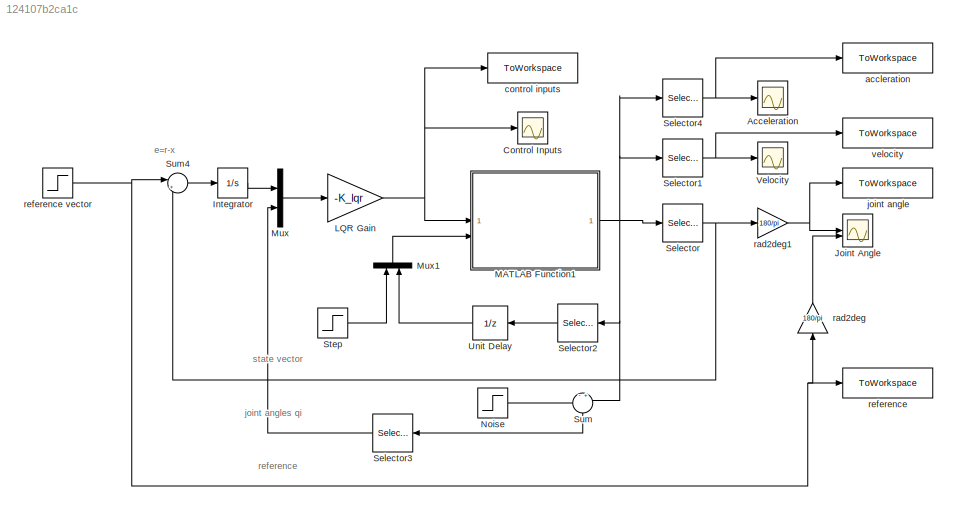
MODEL slx_124107b2ca1c
KIND model
CONFIG AbsTol = auto
CONFIG EnableMultiTasking = off
CONFIG FixedStep = auto
CONFIG MaxStep = auto
CONFIG MinStep = auto
CONFIG RelTol = 1e-3
CONFIG SampleTimeConstraint = Unconstrained
CONFIG SolverName = VariableStepAuto
CONFIG StartTime = 0.0
CONFIG StopTime = 3
BLOCK [Scope] Acceleration
  Floating = off
  NumInputPorts = 1
  ScopeSpecificationString = Simulink.scopes.TimeScopeBlockCfg('CurrentConfiguration', extmgr.ConfigurationSet(extmgr.Configuration('Core','General UI',true),extmgr.Configuration('Core','Source UI',true),extmgr.Configuration('Sources','WiredSimulink',true,'DataLoggingVariableName','ScopeData1'),extmgr.Configuration('Visuals','Time Domain',true,'SerializedDisplays',{struct('MinYLimReal','-25.68605','MaxYLimReal','63.40963','YL...<+1404ch>
BLOCK [Scope] Control Inputs
  Floating = off
  NumInputPorts = 1
  ScopeSpecificationString = Simulink.scopes.TimeScopeBlockCfg('CurrentConfiguration', extmgr.ConfigurationSet(extmgr.Configuration('Core','General UI',true),extmgr.Configuration('Core','Source UI',true),extmgr.Configuration('Sources','WiredSimulink',true,'DataLoggingVariableName','ScopeData3'),extmgr.Configuration('Visuals','Time Domain',true,'SerializedDisplays',{struct('MinYLimReal','-140.03862','MaxYLimReal','161.74786','...<+1409ch>
BLOCK [Integrator] Integrator
BLOCK [Scope] Joint Angle
  Floating = off
  NumInputPorts = 2
  ScopeSpecificationString = Simulink.scopes.TimeScopeBlockCfg('CurrentConfiguration', extmgr.ConfigurationSet(extmgr.Configuration('Core','General UI',true,'FigureColor',[0 0 0]),extmgr.Configuration('Core','Source UI',true),extmgr.Configuration('Sources','WiredSimulink',true,'DataLoggingVariableName','ScopeData4'),extmgr.Configuration('Visuals','Time Domain',true,'SerializedDisplays',{struct('MinYLimReal','-58.8681','MaxYLi...<+1633ch>
BLOCK [Gain] LQR Gain
  Gain = -K_lqr
  Multiplication = Matrix(K*u)
  OutDataTypeStr = Inherit: Same as input
  ParamDataTypeStr = Inherit: Same as input
  SaturateOnIntegerOverflow = on
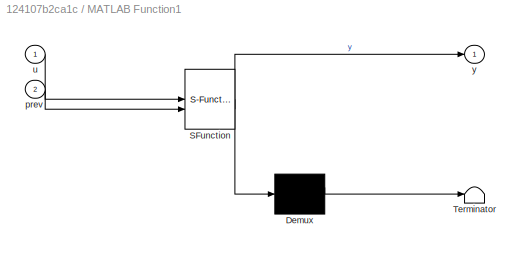
BLOCK [SubSystem] MATLAB Function1
  ErrorFcn = Stateflow.Translate.translate
  LibrarySourceBlock = simulink/User-Defined\nFunctions/MATLAB Function
  PermitHierarchicalResolution = ExplicitOnly
  SFBlockType = MATLAB Function
  TreatAsAtomicUnit = on
BLOCK [Demux] MATLAB Function1/ Demux 
  Outputs = 1
BLOCK [S-Function] MATLAB Function1/ SFunction 
  EnableBusSupport = on
  FunctionName = sf_sfun
  PortCounts = [2 2]
  SFcnIsStateOwnerBlock = off
  SFunctionDeploymentMode = off
  Tag = Stateflow S-Function 1
BLOCK [Terminator] MATLAB Function1/ Terminator 
BLOCK [Inport] MATLAB Function1/prev
  Port = 2
BLOCK [Inport] MATLAB Function1/u
BLOCK [Outport] MATLAB Function1/y
BLOCK [Mux] Mux
  DisplayOption = bar
  Inputs = 2
BLOCK [Mux] Mux1
  DisplayOption = bar
  Inputs = 2
  NameLocation = right
BLOCK [Step] Noise
  After = 0
  SampleTime = 0
  Time = 0
BLOCK [Selector] Selector
  IndexOptions = Index vector (dialog)
  Indices = [1 2 3]
  InputPortWidth = 9
  OutputSizes = 1
BLOCK [Selector] Selector1
  IndexOptions = Index vector (dialog)
  Indices = [4 5 6]
  InputPortWidth = 9
  OutputSizes = 1
BLOCK [Selector] Selector2
  IndexOptions = Index vector (dialog)
  Indices = [7 8 9]
  InputPortWidth = 9
  NameLocation = top
  OutputSizes = 1
BLOCK [Selector] Selector3
  IndexOptions = Index vector (dialog)
  Indices = [1 2 3 4 5 6]
  InputPortWidth = 9
  NameLocation = top
  OutputSizes = 1
BLOCK [Selector] Selector4
  IndexOptions = Index vector (dialog)
  Indices = [7 8 9]
  InputPortWidth = 9
  OutputSizes = 1
BLOCK [Step] Step
  After = [0; 0; 0; 0; 0; 0]
  SampleTime = 0
  Time = 0
BLOCK [Sum] Sum
  Inputs = -+
  NameLocation = left
BLOCK [Sum] Sum4
  InputSameDT = on
  Inputs = |+-
  OutDataTypeStr = Inherit: Same as first input
  SaturateOnIntegerOverflow = on
BLOCK [UnitDelay] Unit Delay
  HasFrameUpgradeWarning = on
  InitialCondition = [0; 0; 0]
  NameLocation = top
  SampleTime = -1
BLOCK [Scope] Velocity
  Floating = off
  NumInputPorts = 1
  ScopeSpecificationString = Simulink.scopes.TimeScopeBlockCfg('CurrentConfiguration', extmgr.ConfigurationSet(extmgr.Configuration('Core','General UI',true),extmgr.Configuration('Core','Source UI',true),extmgr.Configuration('Sources','WiredSimulink',true,'DataLoggingVariableName','ScopeData2'),extmgr.Configuration('Visuals','Time Domain',true,'SerializedDisplays',{struct('MinYLimReal','-5.13721','MaxYLimReal','12.68193','YLa...<+1431ch>
BLOCK [ToWorkspace] accleration
  FixptAsFi = on
  MaxDataPoints = inf
  SampleTime = -1
  SaveFormat = Timeseries
  VariableName = acceleration
BLOCK [ToWorkspace] control inputs
  FixptAsFi = on
  MaxDataPoints = inf
  SampleTime = -1
  SaveFormat = Timeseries
  VariableName = control_inputs
BLOCK [ToWorkspace] joint angle
  FixptAsFi = on
  MaxDataPoints = inf
  SampleTime = -1
  SaveFormat = Timeseries
  VariableName = joint_angle
BLOCK [Gain] rad2deg
  Gain = 180/pi
  NameLocation = right
BLOCK [Gain] rad2deg1
  Gain = 180/pi
BLOCK [ToWorkspace] reference
  FixptAsFi = on
  MaxDataPoints = inf
  SampleTime = -1
  SaveFormat = Timeseries
  VariableName = reference
BLOCK [Step] reference vector
  After = [1.75; 1.13; 2.18]
  Before = [0; 0; 0]
  SampleTime = 0
  Time = 0
BLOCK [ToWorkspace] velocity
  FixptAsFi = on
  MaxDataPoints = inf
  SampleTime = -1
  SaveFormat = Timeseries
  VariableName = velocity
ANNOTATION (root): e=r-x
ANNOTATION (root): joint angles qi
ANNOTATION (root): reference
ANNOTATION (root): state vector
LINE Integrator:1 -> Mux:1
NET LQR Gain:1 -> Control Inputs:1, MATLAB Function1:1, control inputs:1
NET MATLAB Function1:1 -> Selector1:1, Selector2:1, Selector4:1, Selector:1, Sum:2
LINE Mux1:1 -> MATLAB Function1:2
LINE Mux:1 -> LQR Gain:1
LINE Noise:1 -> Sum:1
NET Selector1:1 -> Velocity:1, velocity:1
LINE Selector2:1 -> Unit Delay:1
LINE Selector3:1 -> Mux:2
NET Selector4:1 -> Acceleration:1, accleration:1
NET Selector:1 -> Sum4:2, rad2deg1:1
LINE Step:1 -> Mux1:1
LINE Sum4:1 -> Integrator:1
LINE Sum:1 -> Selector3:1
LINE Unit Delay:1 -> Mux1:2
NET rad2deg1:1 -> Joint Angle:1, joint angle:1
LINE rad2deg:1 -> Joint Angle:2
NET reference vector:1 -> Sum4:1, rad2deg:1, reference:1
note: NET lines group one-source signal fan-out (src -> all destinations, sorted); 1:1 wires keep LINE
CHART MATLAB Function1 states=1 transitions=1
  STATE_LABEL 'eML_blk_kernel()'
  STATE_LABEL 'SCRIPT:\nfunction y = nonlinearDynamics(u, prev)\n% Vectorized discrete dynamics for a 3-link planar robot leg\n\n% x_prev: 6x1 state vector = [q1; q2; q3; dq1; dq2; dq3]\n% u_prev: 3x1 torque vector = [tau1; tau2; tau3]\n% ddq_prev: 3x1 vector of previous accelerations\n% dt: scalar time step\n\n% Unpack inputs\nq = prev(1:3);\ndq = prev(4:6);\nddq_prev = prev(7:9);\n\ntau = u;\n\nq1 = q(1); q2 = q(2); q3 = q(3)...<+1972ch>'
CHART  states=0 transitions=0
